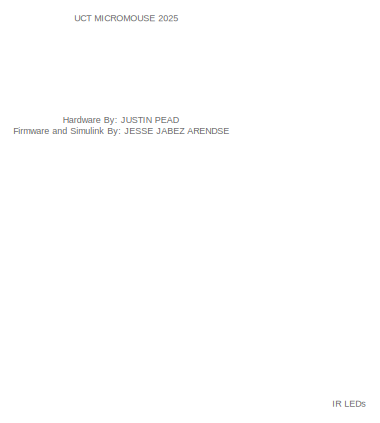
[diagram: root canvas - part 1/4, top left region]
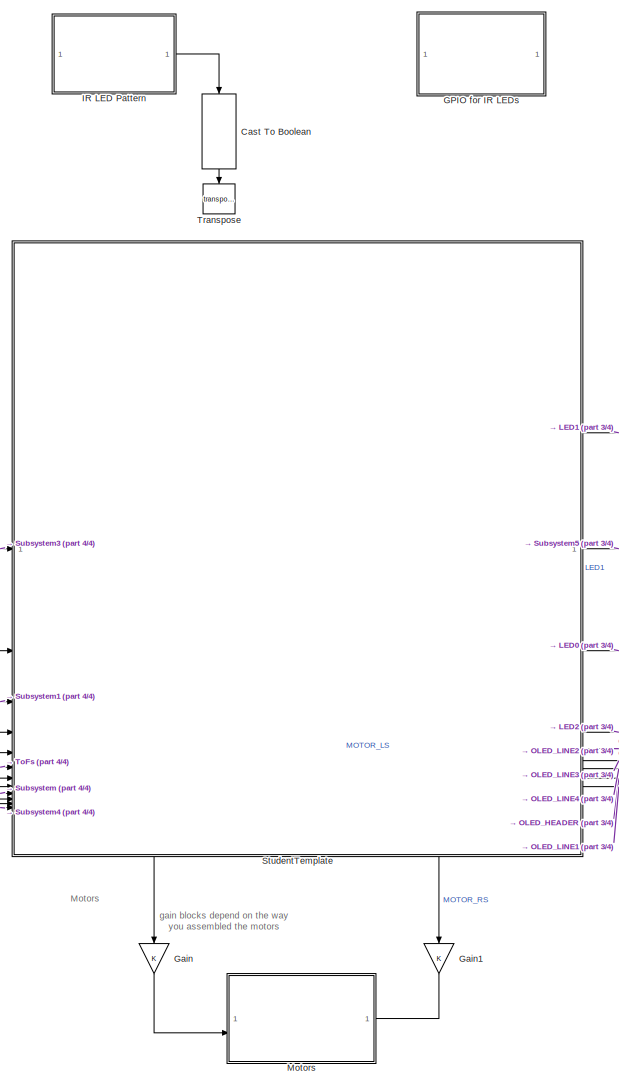
[diagram: root canvas - part 2/4, central region]
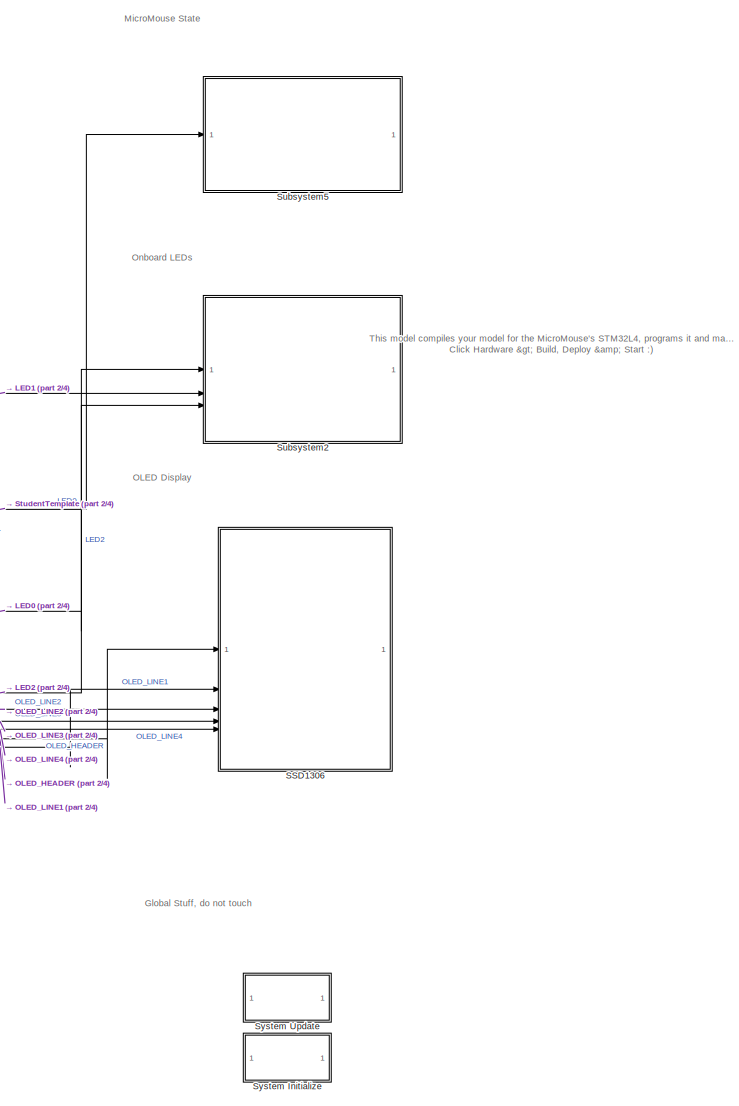
[diagram: root canvas - part 3/4, middle right region]
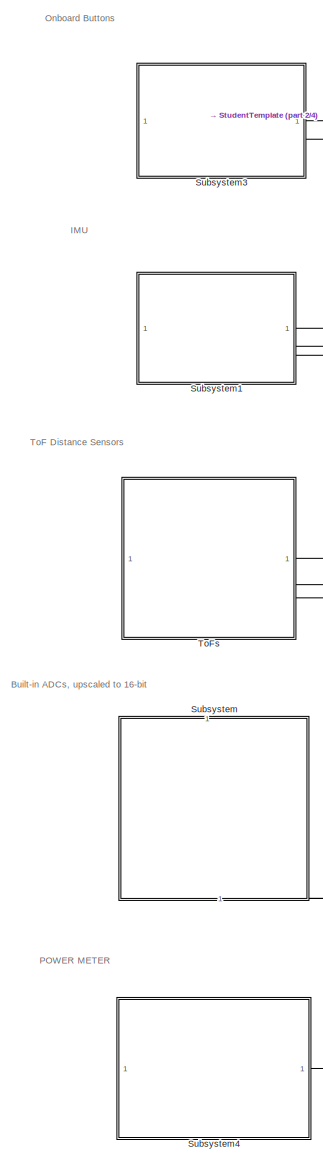
[diagram: root canvas - part 4/4, middle left region]
MODEL slx_dfff387258cb
KIND model
CONFIG AbsTol = auto
CONFIG EnableMultiTasking = on
CONFIG FixedStep = 0.01
CONFIG MaxStep = auto
CONFIG MinStep = auto
CONFIG PreLoadFcn = addpath(genpath(pwd))\n\nMX_IOC_LOCATION = auto_MX_path()
CONFIG RelTol = 1e-3
CONFIG SampleTimeConstraint = Unconstrained
CONFIG SolverName = FixedStepAuto
CONFIG StartTime = 0.0
CONFIG StopTime = inf
BLOCK [DataTypeConversion] Cast To Boolean
  Commented = on
  NameLocation = left
  OutDataTypeStr = boolean
  RndMeth = Floor
  SaturateOnIntegerOverflow = off
BLOCK [SubSystem] GPIO for IR LEDs
  Commented = on
  ReferencedSubsystem = IR_LEDs
  SystemSampleTime = samplingTime
  TreatAsAtomicUnit = on
BLOCK [Gain] Gain
  NameLocation = left
  OutDataTypeStr = Inherit: Same as input
BLOCK [Gain] Gain1
  NameLocation = left
  OutDataTypeStr = Inherit: Same as input
BLOCK [SubSystem] IR LED Pattern
  Commented = on
  ReferencedSubsystem = IR_LED_Pattern
BLOCK [SubSystem] Motors
  PortSchema = {"entries":[{"content":{"sides":[{"content":{"connectorIds":["In2"]},"type":"ConnectorPlacement.EquallySpacedRectSide","uuid":"1d0b36bf-65cc-407d-99e2-9b57a669311c"},{"content":{"connectorIds":["In1"],"side":"RIGHT"},"type":"ConnectorPlacement.EquallySpacedRectSide","uuid":"0f431f71-a73a-435d-830e-9de719167e02"},{"content":{"side":"TOP"},"type":"ConnectorPlacement.EquallySpacedRectSide","uuid":"bb...<+221ch>
  ReferencedSubsystem = Motors
BLOCK [SubSystem] SSD1306
  ReferencedSubsystem = SSD1306
BLOCK [SubSystem] StudentTemplate
  PortSchema = {"entries":[{"content":{"sides":[{"content":{"connectorIds":["In1","In2","In3","In4","In5","In6","In7","In8","In9","In10","In11","In12"]},"type":"ConnectorPlacement.EquallySpacedRectSide","uuid":"d1b9fe55-82ae-4911-bdae-d1742f45ad0b"},{"content":{"connectorIds":["Out1","Out2","Out3","Out4","Out7","Out8","Out9","Out10","Out11"],"side":"RIGHT"},"type":"ConnectorPlacement.EquallySpacedRectSide","uuid...<+506ch>
  ReferencedSubsystem = StudentTemplate
BLOCK [SubSystem] Subsystem
  PortSchema = {"entries":[{"content":{"sides":[{"content":{},"type":"ConnectorPlacement.EquallySpacedRectSide","uuid":"97954fbc-a995-443d-a89d-5fc021da5850"},{"content":{"side":"RIGHT"},"type":"ConnectorPlacement.EquallySpacedRectSide","uuid":"4d9d086b-245c-4f12-8434-deaa6fcb7387"},{"content":{"connectorIds":["Out1","Out2","Out3"],"side":"TOP"},"type":"ConnectorPlacement.EquallySpacedRectSide","uuid":"e3200828-...<+214ch>
  ReferencedSubsystem = ADC_Block
BLOCK [SubSystem] Subsystem1
  ReferencedSubsystem = IMU
BLOCK [SubSystem] Subsystem2
  ReferencedSubsystem = LEDs
BLOCK [SubSystem] Subsystem3
  ReferencedSubsystem = SWs
BLOCK [SubSystem] Subsystem4
  ReferencedSubsystem = POWER
BLOCK [SubSystem] Subsystem5
  ReferencedSubsystem = States
BLOCK [SubSystem] System Initialize
  CopyFcn = cccopyfcn(gcb)
  OpenFcn = ccopenfcn('System Initialize Function')
BLOCK [SubSystem] System Update
  CopyFcn = cccopyfcn(gcb)
  OpenFcn = ccopenfcn('System Update Function')
BLOCK [SubSystem] ToFs
  ReferencedSubsystem = VL53L0
BLOCK [Math] Transpose
  Commented = on
  NameLocation = left
  Operator = transpose
ANNOTATION (root): Hardware By: JUSTIN PEAD Firmware and Simulink By: JESSE JABEZ ARENDSE
ANNOTATION (root): This model compiles your model for the MicroMouse's STM32L4, programs it and makes it run headless Click Hardware > Build, Deploy & Start :)
ANNOTATION (root): UCT MICROMOUSE 2025
ANNOTATION (root): Built-in ADCs, upscaled to 16-bit
ANNOTATION (root): Global Stuff, do not touch
ANNOTATION (root): IMU
ANNOTATION (root): IR LEDs
ANNOTATION (root): MicroMouse State
ANNOTATION (root): Motors
ANNOTATION (root): OLED Display
ANNOTATION (root): Onboard Buttons
ANNOTATION (root): Onboard LEDs
ANNOTATION (root): POWER METER
ANNOTATION (root): ToF Distance Sensors
ANNOTATION (root): gain blocks depend on the way you assembled the motors
LINE Cast To Boolean:1 -> Transpose:1
LINE Gain1:1 -> Motors:1
LINE Gain:1 -> Motors:2
LINE IR LED Pattern:1 -> Cast To Boolean:1
LINE StudentTemplate:1 -> Subsystem5:1
LINE StudentTemplate:10 -> SSD1306:4
LINE StudentTemplate:11 -> SSD1306:5
LINE StudentTemplate:2 -> Subsystem2:1
LINE StudentTemplate:3 -> Subsystem2:2
LINE StudentTemplate:4 -> Subsystem2:3
LINE StudentTemplate:5 -> Gain:1
LINE StudentTemplate:6 -> Gain1:1
LINE StudentTemplate:7 -> SSD1306:1
LINE StudentTemplate:8 -> SSD1306:2
LINE StudentTemplate:9 -> SSD1306:3
LINE Subsystem1:1 -> StudentTemplate:3
LINE Subsystem1:2 -> StudentTemplate:4
LINE Subsystem1:3 -> StudentTemplate:5
LINE Subsystem3:1 -> StudentTemplate:1
LINE Subsystem3:2 -> StudentTemplate:2
LINE Subsystem4:1 -> StudentTemplate:12
LINE Subsystem:1 -> StudentTemplate:9
LINE Subsystem:2 -> StudentTemplate:10
LINE Subsystem:3 -> StudentTemplate:11
LINE ToFs:1 -> StudentTemplate:6
LINE ToFs:2 -> StudentTemplate:7
LINE ToFs:3 -> StudentTemplate:8
